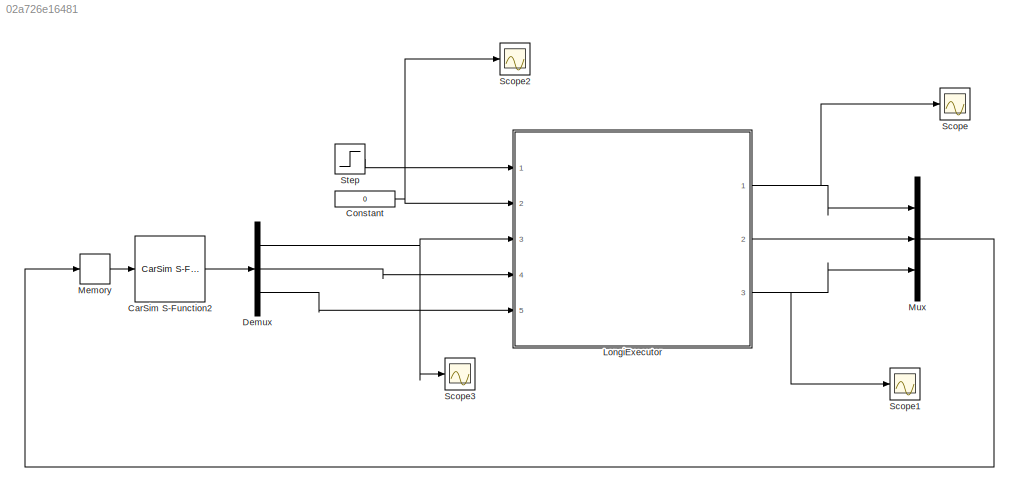
MODEL slx_02a726e16481
KIND model
CONFIG AbsTol = auto
CONFIG FixedStep = 0.001
CONFIG MaxStep = auto
CONFIG MinStep = auto
CONFIG PreLoadFcn = MotorPara
CONFIG RelTol = 1e-3
CONFIG SampleTimeConstraint = Unconstrained
CONFIG Solver = FixedStepDiscrete
CONFIG SolverMode = Auto
CONFIG SolverName = FixedStepDiscrete
CONFIG StartTime = 0.0
CONFIG StopTime = 10.0
BLOCK [Reference] CarSim S-Function2  REF=Solver_SF/CarSim S-Function2
  AttributesFormatString = Vehicle Code: %<VehicleCode>
  Ports = [1, 1]
  Priority = 1
  SourceBlock = Solver_SF/CarSim S-Function2
  SourceType = Vehicle math model library
BLOCK [Constant] Constant
  Value = 0
BLOCK [Demux] Demux
  DisplayOption = bar
  Outputs = 3
  Ports = [1, 3]
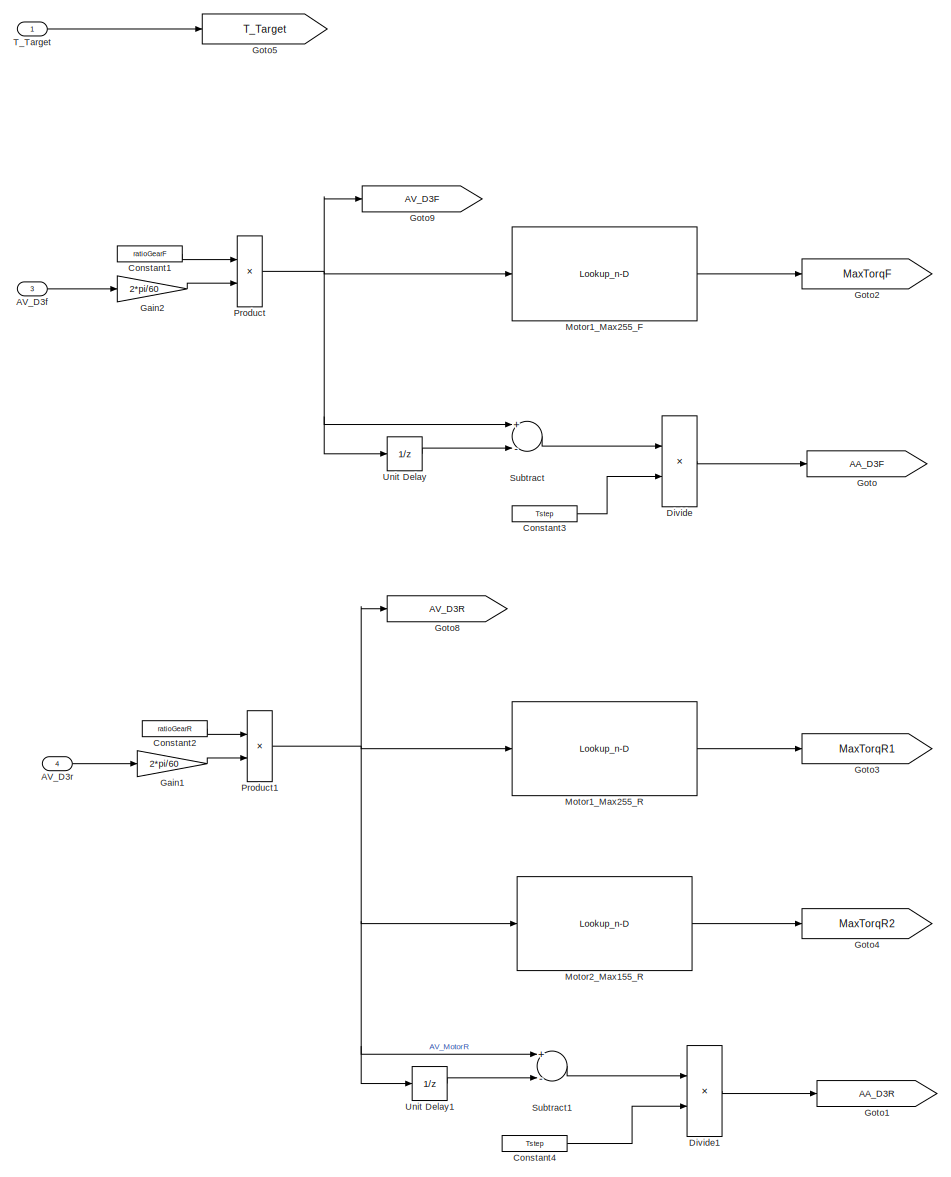
[diagram: LongiExecutor - part 1/5, top left region]
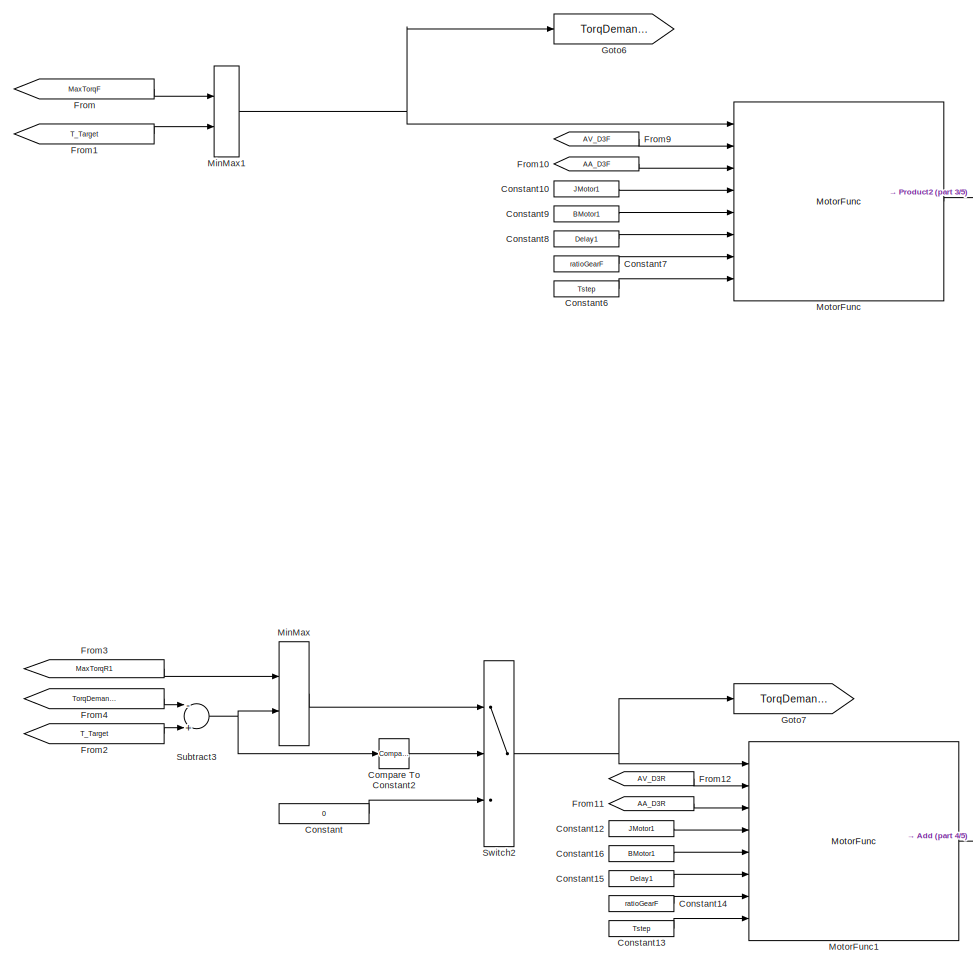
[diagram: LongiExecutor - part 2/5, central region]
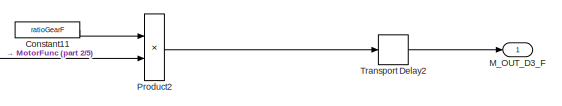
[diagram: LongiExecutor - part 3/5, middle right region]
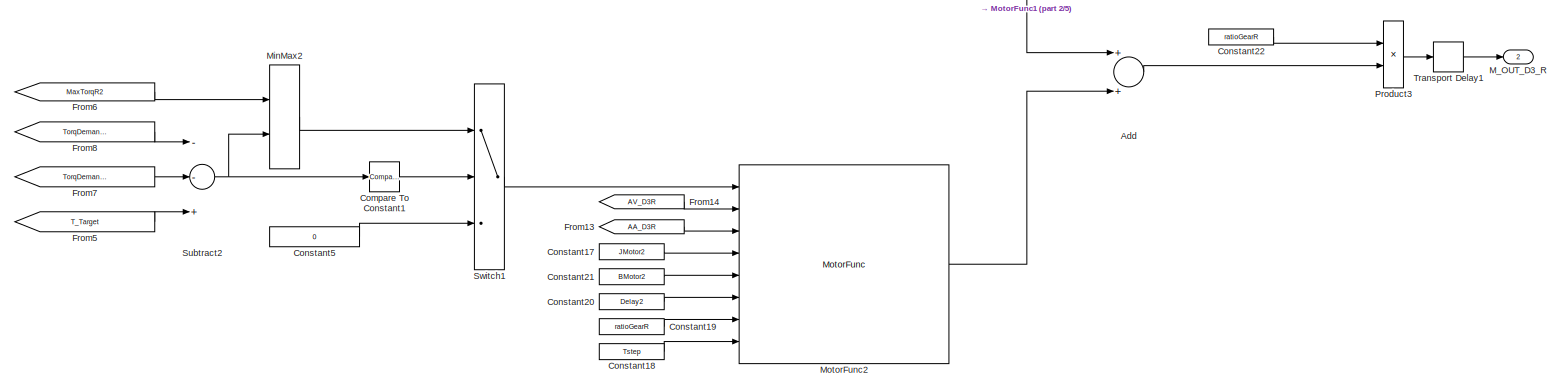
[diagram: LongiExecutor - part 4/5, full width, bottom band]
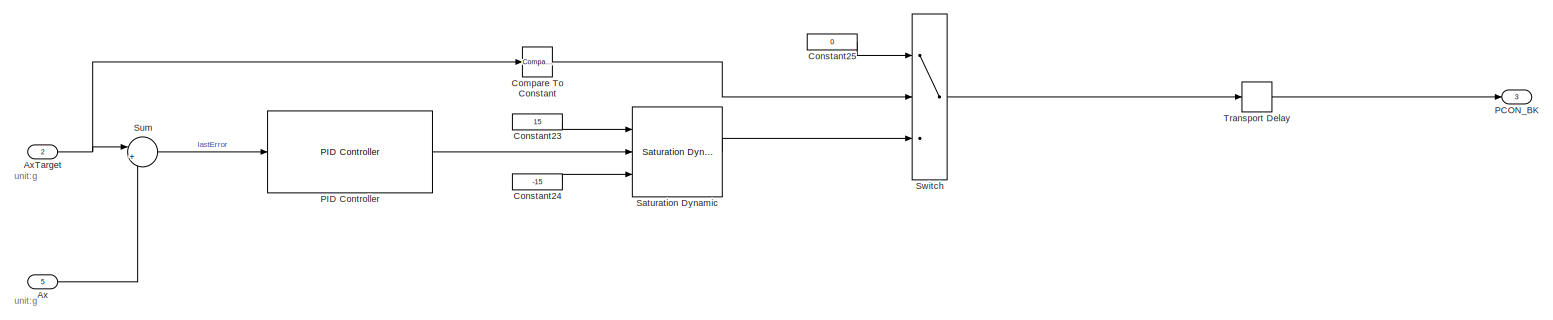
[diagram: LongiExecutor - part 5/5, full width, bottom band]
BLOCK [SubSystem] LongiExecutor
  Ports = [5, 3]
  RequestExecContextInheritance = off
  Variant = off
BLOCK [Inport] LongiExecutor/AV_D3f
  IconDisplay = Port number
  Port = 3
BLOCK [Inport] LongiExecutor/AV_D3r
  IconDisplay = Port number
  Port = 4
BLOCK [Sum] LongiExecutor/Add
  InputSameDT = off
  OutDataTypeStr = Inherit: Inherit via internal rule
  Ports = [2, 1]
  SaturateOnIntegerOverflow = off
BLOCK [Inport] LongiExecutor/Ax
  IconDisplay = Port number
  Port = 5
BLOCK [Inport] LongiExecutor/AxTarget
  IconDisplay = Port number
  Port = 2
BLOCK [Reference] LongiExecutor/Compare To Constant  REF=simulink/Logic and Bit
Operations/Compare
To Constant
  Ports = [1, 1]
  SourceBlock = simulink/Logic and Bit\nOperations/Compare\nTo Constant
  SourceType = Compare To Constant
BLOCK [Reference] LongiExecutor/Compare To Constant1  REF=simulink/Logic and Bit
Operations/Compare
To Constant
  Ports = [1, 1]
  SourceBlock = simulink/Logic and Bit\nOperations/Compare\nTo Constant
  SourceType = Compare To Constant
BLOCK [Reference] LongiExecutor/Compare To Constant2  REF=simulink/Logic and Bit
Operations/Compare
To Constant
  Ports = [1, 1]
  SourceBlock = simulink/Logic and Bit\nOperations/Compare\nTo Constant
  SourceType = Compare To Constant
BLOCK [Constant] LongiExecutor/Constant
  Value = 0
BLOCK [Constant] LongiExecutor/Constant1
  Value = ratioGearF
BLOCK [Constant] LongiExecutor/Constant10
  Value = JMotor1
BLOCK [Constant] LongiExecutor/Constant11
  Value = ratioGearF
BLOCK [Constant] LongiExecutor/Constant12
  Value = JMotor1
BLOCK [Constant] LongiExecutor/Constant13
  Value = Tstep
BLOCK [Constant] LongiExecutor/Constant14
  Value = ratioGearF
BLOCK [Constant] LongiExecutor/Constant15
  Value = Delay1
BLOCK [Constant] LongiExecutor/Constant16
  Value = BMotor1
BLOCK [Constant] LongiExecutor/Constant17
  Value = JMotor2
BLOCK [Constant] LongiExecutor/Constant18
  Value = Tstep
BLOCK [Constant] LongiExecutor/Constant19
  Value = ratioGearR
BLOCK [Constant] LongiExecutor/Constant2
  Value = ratioGearR
BLOCK [Constant] LongiExecutor/Constant20
  Value = Delay2
BLOCK [Constant] LongiExecutor/Constant21
  Value = BMotor2
BLOCK [Constant] LongiExecutor/Constant22
  Value = ratioGearR
BLOCK [Constant] LongiExecutor/Constant23
  Value = 15
BLOCK [Constant] LongiExecutor/Constant24
  Value = -15
BLOCK [Constant] LongiExecutor/Constant25
  Value = 0
BLOCK [Constant] LongiExecutor/Constant3
  Value = Tstep
BLOCK [Constant] LongiExecutor/Constant4
  Value = Tstep
BLOCK [Constant] LongiExecutor/Constant5
  Value = 0
BLOCK [Constant] LongiExecutor/Constant6
  Value = Tstep
BLOCK [Constant] LongiExecutor/Constant7
  Value = ratioGearF
BLOCK [Constant] LongiExecutor/Constant8
  Value = Delay1
BLOCK [Constant] LongiExecutor/Constant9
  Value = BMotor1
BLOCK [Product] LongiExecutor/Divide
  InputSameDT = off
  Inputs = */
  OutDataTypeStr = Inherit: Inherit via internal rule
  Ports = [2, 1]
  RndMeth = Floor
  SaturateOnIntegerOverflow = off
BLOCK [Product] LongiExecutor/Divide1
  InputSameDT = off
  Inputs = */
  OutDataTypeStr = Inherit: Inherit via internal rule
  Ports = [2, 1]
  RndMeth = Floor
  SaturateOnIntegerOverflow = off
BLOCK [From] LongiExecutor/From
  GotoTag = MaxTorqF
BLOCK [From] LongiExecutor/From1
  GotoTag = T_Target
BLOCK [From] LongiExecutor/From10
  GotoTag = AA_D3F
BLOCK [From] LongiExecutor/From11
  GotoTag = AA_D3R
BLOCK [From] LongiExecutor/From12
  GotoTag = AV_D3R
BLOCK [From] LongiExecutor/From13
  GotoTag = AA_D3R
BLOCK [From] LongiExecutor/From14
  GotoTag = AV_D3R
BLOCK [From] LongiExecutor/From2
  GotoTag = T_Target
BLOCK [From] LongiExecutor/From3
  GotoTag = MaxTorqR1
BLOCK [From] LongiExecutor/From4
  GotoTag = TorqDemandF
BLOCK [From] LongiExecutor/From5
  GotoTag = T_Target
BLOCK [From] LongiExecutor/From6
  GotoTag = MaxTorqR2
BLOCK [From] LongiExecutor/From7
  GotoTag = TorqDemandF
BLOCK [From] LongiExecutor/From8
  GotoTag = TorqDemandR1
BLOCK [From] LongiExecutor/From9
  GotoTag = AV_D3F
BLOCK [Gain] LongiExecutor/Gain1
  Gain = 2*pi/60
  OutDataTypeStr = Inherit: Inherit via internal rule
  ParamDataTypeStr = Inherit: Inherit via internal rule
  SaturateOnIntegerOverflow = off
BLOCK [Gain] LongiExecutor/Gain2
  Gain = 2*pi/60
  OutDataTypeStr = Inherit: Inherit via internal rule
  ParamDataTypeStr = Inherit: Inherit via internal rule
  SaturateOnIntegerOverflow = off
BLOCK [Goto] LongiExecutor/Goto
  GotoTag = AA_D3F
BLOCK [Goto] LongiExecutor/Goto1
  GotoTag = AA_D3R
BLOCK [Goto] LongiExecutor/Goto2
  GotoTag = MaxTorqF
BLOCK [Goto] LongiExecutor/Goto3
  GotoTag = MaxTorqR1
BLOCK [Goto] LongiExecutor/Goto4
  GotoTag = MaxTorqR2
BLOCK [Goto] LongiExecutor/Goto5
  GotoTag = T_Target
BLOCK [Goto] LongiExecutor/Goto6
  GotoTag = TorqDemandF
BLOCK [Goto] LongiExecutor/Goto7
  GotoTag = TorqDemandR1
BLOCK [Goto] LongiExecutor/Goto8
  GotoTag = AV_D3R
BLOCK [Goto] LongiExecutor/Goto9
  GotoTag = AV_D3F
BLOCK [Outport] LongiExecutor/M_OUT_D3_F
  IconDisplay = Port number
BLOCK [Outport] LongiExecutor/M_OUT_D3_R
  IconDisplay = Port number
  Port = 2
BLOCK [MinMax] LongiExecutor/MinMax
  InputSameDT = off
  Inputs = 2
  Ports = [2, 1]
  SaturateOnIntegerOverflow = off
BLOCK [MinMax] LongiExecutor/MinMax1
  InputSameDT = off
  Inputs = 2
  Ports = [2, 1]
  SaturateOnIntegerOverflow = off
BLOCK [MinMax] LongiExecutor/MinMax2
  InputSameDT = off
  Inputs = 2
  Ports = [2, 1]
  SaturateOnIntegerOverflow = off
BLOCK [Lookup_n-D] LongiExecutor/Motor1_Max255_F
  BreakpointsForDimension1 = [-1047.2,-942.48,-837.76,-733.04,-628.32,-523.6,-418.88,-314.16,-209.44,-104.72,-52.36,-0.1,0,0.1,52.36,104.72,209.44,314.16,418.88,523.6	628.32,733.04,837.76,942.48,1047.2]  <repeated x3 — deduplicated; at blocks: Motor1_Max255_F, Motor1_Max255_R, Motor2_Max155_R>
  InternalRulePriority = Speed
  NumberOfTableDimensions = 1
  Ports = [1, 1]
  RndMeth = Simplest
  Table = [-67,-79,-92,-108,-130,-159,-204,-255,-255,-255,-255,-255,255,255,255,255,255,255,204,159,130,108,92,79,67]
BLOCK [Lookup_n-D] LongiExecutor/Motor1_Max255_R
  InternalRulePriority = Speed
  NumberOfTableDimensions = 1
  Ports = [1, 1]
  RndMeth = Simplest
  Table = [-67,-79,-92,-108,-130,-159,-204,-255,-255,-255,-255,-255,255,255,255,255,255,255,204,159,130,108,92,79,67]
BLOCK [Lookup_n-D] LongiExecutor/Motor2_Max155_R
  InternalRulePriority = Speed
  NumberOfTableDimensions = 1
  Ports = [1, 1]
  RndMeth = Simplest
  Table = [-46.6,-52.3,-58.93,-69,-82.5,-99.5,-124.5,-155,-155,-155	,-155,-155,155,155,155,155,155,155,124.5,99.5,82.5,69,58.93,52.3,46.6]
BLOCK [Reference] LongiExecutor/MotorFunc  REF=MyLib/MotorFunc
  Ports = [8, 1]
  SourceBlock = MyLib/MotorFunc
  SourceType = SubSystem
BLOCK [Reference] LongiExecutor/MotorFunc1  REF=MyLib/MotorFunc
  Ports = [8, 1]
  SourceBlock = MyLib/MotorFunc
  SourceType = SubSystem
BLOCK [Reference] LongiExecutor/MotorFunc2  REF=MyLib/MotorFunc
  Ports = [8, 1]
  SourceBlock = MyLib/MotorFunc
  SourceType = SubSystem
BLOCK [Outport] LongiExecutor/PCON_BK
  IconDisplay = Port number
  Port = 3
BLOCK [Reference] LongiExecutor/PID Controller  REF=simulink/Continuous/PID Controller
  Ports = [1, 1]
  SourceBlock = simulink/Continuous/PID Controller
  SourceType = PID 1dof
BLOCK [Product] LongiExecutor/Product
  InputSameDT = off
  OutDataTypeStr = Inherit: Inherit via internal rule
  Ports = [2, 1]
  RndMeth = Floor
  SaturateOnIntegerOverflow = off
BLOCK [Product] LongiExecutor/Product1
  InputSameDT = off
  OutDataTypeStr = Inherit: Inherit via internal rule
  Ports = [2, 1]
  RndMeth = Floor
  SaturateOnIntegerOverflow = off
BLOCK [Product] LongiExecutor/Product2
  InputSameDT = off
  OutDataTypeStr = Inherit: Inherit via internal rule
  Ports = [2, 1]
  RndMeth = Floor
  SaturateOnIntegerOverflow = off
BLOCK [Product] LongiExecutor/Product3
  InputSameDT = off
  OutDataTypeStr = Inherit: Inherit via internal rule
  Ports = [2, 1]
  RndMeth = Floor
  SaturateOnIntegerOverflow = off
BLOCK [Reference] LongiExecutor/Saturation Dynamic  REF=simulink/Discontinuities/Saturation
Dynamic
  Ports = [3, 1]
  SourceBlock = simulink/Discontinuities/Saturation\nDynamic
  SourceType = Saturation Dynamic
BLOCK [Sum] LongiExecutor/Subtract
  InputSameDT = off
  Inputs = +-
  OutDataTypeStr = Inherit: Inherit via internal rule
  Ports = [2, 1]
  SaturateOnIntegerOverflow = off
BLOCK [Sum] LongiExecutor/Subtract1
  InputSameDT = off
  Inputs = +-
  OutDataTypeStr = Inherit: Inherit via internal rule
  Ports = [2, 1]
  SaturateOnIntegerOverflow = off
BLOCK [Sum] LongiExecutor/Subtract2
  InputSameDT = off
  Inputs = --+
  OutDataTypeStr = Inherit: Inherit via internal rule
  Ports = [3, 1]
  SaturateOnIntegerOverflow = off
BLOCK [Sum] LongiExecutor/Subtract3
  InputSameDT = off
  Inputs = -+
  OutDataTypeStr = Inherit: Inherit via internal rule
  Ports = [2, 1]
  SaturateOnIntegerOverflow = off
BLOCK [Sum] LongiExecutor/Sum
  IconShape = round
  InputSameDT = off
  Inputs = |+-
  OutDataTypeStr = Inherit: Inherit via internal rule
  Ports = [2, 1]
  SaturateOnIntegerOverflow = off
BLOCK [Switch] LongiExecutor/Switch
  Criteria = u2 ~= 0
  InputSameDT = off
  SaturateOnIntegerOverflow = off
BLOCK [Switch] LongiExecutor/Switch1
  Criteria = u2 ~= 0
  InputSameDT = off
  SaturateOnIntegerOverflow = off
BLOCK [Switch] LongiExecutor/Switch2
  Criteria = u2 ~= 0
  InputSameDT = off
  SaturateOnIntegerOverflow = off
BLOCK [Inport] LongiExecutor/T_Target
  IconDisplay = Port number
BLOCK [TransportDelay] LongiExecutor/Transport Delay
  DelayTime = BrkDelayTime
  Ports = [1, 1]
BLOCK [TransportDelay] LongiExecutor/Transport Delay1
  DelayTime = TorqDelayTime
  Ports = [1, 1]
BLOCK [TransportDelay] LongiExecutor/Transport Delay2
  DelayTime = TorqDelayTime
  Ports = [1, 1]
BLOCK [UnitDelay] LongiExecutor/Unit Delay
  InputProcessing = Elements as channels (sample based)
  SampleTime = -1
BLOCK [UnitDelay] LongiExecutor/Unit Delay1
  InputProcessing = Elements as channels (sample based)
  SampleTime = -1
BLOCK [Memory] Memory
BLOCK [Mux] Mux
  DisplayOption = bar
  Inputs = 3
  Ports = [3, 1]
BLOCK [Scope] Scope
  Ports = [1]
  ScopeSpecificationString = Simulink.scopes.TimeScopeBlockCfg('CurrentConfiguration', extmgr.ConfigurationSet(extmgr.Configuration('Core','General UI',true),extmgr.Configuration('Core','Source UI',true),extmgr.Configuration('Sources','WiredSimulink',true),extmgr.Configuration('Visuals','Time Domain',true,'SerializedDisplays',{struct('MinYLimReal','-286.98051','MaxYLimReal','32.67439','YLabelReal','','MinYLimMag',' 0.00000','...<+1376ch>
BLOCK [Scope] Scope1
  Ports = [1]
  ScopeSpecificationString = Simulink.scopes.TimeScopeBlockCfg('CurrentConfiguration', extmgr.ConfigurationSet(extmgr.Configuration('Core','General UI',true),extmgr.Configuration('Core','Source UI',true),extmgr.Configuration('Sources','WiredSimulink',true,'DataLoggingVariableName','ScopeData1'),extmgr.Configuration('Visuals','Time Domain',true,'SerializedDisplays',{struct('MinYLimReal','-16.93761','MaxYLimReal','2.4385','YLab...<+1430ch>
BLOCK [Scope] Scope2
  Ports = [1]
  ScopeSpecificationString = Simulink.scopes.TimeScopeBlockCfg('CurrentConfiguration', extmgr.ConfigurationSet(extmgr.Configuration('Core','General UI',true),extmgr.Configuration('Core','Source UI',true),extmgr.Configuration('Sources','WiredSimulink',true,'DataLoggingVariableName','ScopeData2'),extmgr.Configuration('Visuals','Time Domain',true,'SerializedDisplays',{struct('MinYLimReal','-0.45','MaxYLimReal','0.05','YLabelReal...<+1374ch>
BLOCK [Scope] Scope3
  Ports = [1]
  ScopeSpecificationString = Simulink.scopes.TimeScopeBlockCfg('CurrentConfiguration', extmgr.ConfigurationSet(extmgr.Configuration('Core','General UI',true),extmgr.Configuration('Core','Source UI',true),extmgr.Configuration('Sources','WiredSimulink',true,'DataLoggingVariableName','ScopeData5'),extmgr.Configuration('Visuals','Time Domain',true,'SerializedDisplays',{struct('MinYLimReal','-414.71059','MaxYLimReal','3671.11294',...<+1411ch>
BLOCK [Step] Step
  After = 150
  SampleTime = 0
ANNOTATION LongiExecutor: unit:g
LINE CarSim S-Function2:1 -> Demux:1
NET Constant:1 -> LongiExecutor:2, Scope2:1
NET Demux:1 -> LongiExecutor:3, Scope3:1
LINE Demux:2 -> LongiExecutor:4
LINE Demux:3 -> LongiExecutor:5
LINE LongiExecutor/AV_D3f:1 -> LongiExecutor/Gain2:1
LINE LongiExecutor/AV_D3r:1 -> LongiExecutor/Gain1:1
LINE LongiExecutor/Add:1 -> LongiExecutor/Product3:2
LINE LongiExecutor/Ax:1 -> LongiExecutor/Sum:2
NET LongiExecutor/AxTarget:1 -> LongiExecutor/Compare To Constant:1, LongiExecutor/Sum:1
LINE LongiExecutor/Compare To Constant1:1 -> LongiExecutor/Switch1:2
LINE LongiExecutor/Compare To Constant2:1 -> LongiExecutor/Switch2:2
LINE LongiExecutor/Compare To Constant:1 -> LongiExecutor/Switch:2
LINE LongiExecutor/Constant10:1 -> LongiExecutor/MotorFunc:4
LINE LongiExecutor/Constant11:1 -> LongiExecutor/Product2:1
LINE LongiExecutor/Constant12:1 -> LongiExecutor/MotorFunc1:4
LINE LongiExecutor/Constant13:1 -> LongiExecutor/MotorFunc1:8
LINE LongiExecutor/Constant14:1 -> LongiExecutor/MotorFunc1:7
LINE LongiExecutor/Constant15:1 -> LongiExecutor/MotorFunc1:6
LINE LongiExecutor/Constant16:1 -> LongiExecutor/MotorFunc1:5
LINE LongiExecutor/Constant17:1 -> LongiExecutor/MotorFunc2:4
LINE LongiExecutor/Constant18:1 -> LongiExecutor/MotorFunc2:8
LINE LongiExecutor/Constant19:1 -> LongiExecutor/MotorFunc2:7
LINE LongiExecutor/Constant1:1 -> LongiExecutor/Product:1
LINE LongiExecutor/Constant20:1 -> LongiExecutor/MotorFunc2:6
LINE LongiExecutor/Constant21:1 -> LongiExecutor/MotorFunc2:5
LINE LongiExecutor/Constant22:1 -> LongiExecutor/Product3:1
LINE LongiExecutor/Constant23:1 -> LongiExecutor/Saturation Dynamic:1
LINE LongiExecutor/Constant24:1 -> LongiExecutor/Saturation Dynamic:3
LINE LongiExecutor/Constant25:1 -> LongiExecutor/Switch:1
LINE LongiExecutor/Constant2:1 -> LongiExecutor/Product1:1
LINE LongiExecutor/Constant3:1 -> LongiExecutor/Divide:2
LINE LongiExecutor/Constant4:1 -> LongiExecutor/Divide1:2
LINE LongiExecutor/Constant5:1 -> LongiExecutor/Switch1:3
LINE LongiExecutor/Constant6:1 -> LongiExecutor/MotorFunc:8
LINE LongiExecutor/Constant7:1 -> LongiExecutor/MotorFunc:7
LINE LongiExecutor/Constant8:1 -> LongiExecutor/MotorFunc:6
LINE LongiExecutor/Constant9:1 -> LongiExecutor/MotorFunc:5
LINE LongiExecutor/Constant:1 -> LongiExecutor/Switch2:3
LINE LongiExecutor/Divide1:1 -> LongiExecutor/Goto1:1
LINE LongiExecutor/Divide:1 -> LongiExecutor/Goto:1
LINE LongiExecutor/From10:1 -> LongiExecutor/MotorFunc:3
LINE LongiExecutor/From11:1 -> LongiExecutor/MotorFunc1:3
LINE LongiExecutor/From12:1 -> LongiExecutor/MotorFunc1:2
LINE LongiExecutor/From13:1 -> LongiExecutor/MotorFunc2:3
LINE LongiExecutor/From14:1 -> LongiExecutor/MotorFunc2:2
LINE LongiExecutor/From1:1 -> LongiExecutor/MinMax1:2
LINE LongiExecutor/From2:1 -> LongiExecutor/Subtract3:2
LINE LongiExecutor/From3:1 -> LongiExecutor/MinMax:1
LINE LongiExecutor/From4:1 -> LongiExecutor/Subtract3:1
LINE LongiExecutor/From5:1 -> LongiExecutor/Subtract2:3
LINE LongiExecutor/From6:1 -> LongiExecutor/MinMax2:1
LINE LongiExecutor/From7:1 -> LongiExecutor/Subtract2:2
LINE LongiExecutor/From8:1 -> LongiExecutor/Subtract2:1
LINE LongiExecutor/From9:1 -> LongiExecutor/MotorFunc:2
LINE LongiExecutor/From:1 -> LongiExecutor/MinMax1:1
LINE LongiExecutor/Gain1:1 -> LongiExecutor/Product1:2
LINE LongiExecutor/Gain2:1 -> LongiExecutor/Product:2
NET LongiExecutor/MinMax1:1 -> LongiExecutor/Goto6:1, LongiExecutor/MotorFunc:1
LINE LongiExecutor/MinMax2:1 -> LongiExecutor/Switch1:1
LINE LongiExecutor/MinMax:1 -> LongiExecutor/Switch2:1
LINE LongiExecutor/Motor1_Max255_F:1 -> LongiExecutor/Goto2:1
LINE LongiExecutor/Motor1_Max255_R:1 -> LongiExecutor/Goto3:1
LINE LongiExecutor/Motor2_Max155_R:1 -> LongiExecutor/Goto4:1
LINE LongiExecutor/MotorFunc1:1 -> LongiExecutor/Add:1
LINE LongiExecutor/MotorFunc2:1 -> LongiExecutor/Add:2
LINE LongiExecutor/MotorFunc:1 -> LongiExecutor/Product2:2
LINE LongiExecutor/PID Controller:1 -> LongiExecutor/Saturation Dynamic:2
NET LongiExecutor/Product1:1 -> LongiExecutor/Goto8:1, LongiExecutor/Motor1_Max255_R:1, LongiExecutor/Motor2_Max155_R:1, LongiExecutor/Subtract1:1, LongiExecutor/Unit Delay1:1
LINE LongiExecutor/Product2:1 -> LongiExecutor/Transport Delay2:1
LINE LongiExecutor/Product3:1 -> LongiExecutor/Transport Delay1:1
NET LongiExecutor/Product:1 -> LongiExecutor/Goto9:1, LongiExecutor/Motor1_Max255_F:1, LongiExecutor/Subtract:1, LongiExecutor/Unit Delay:1
LINE LongiExecutor/Saturation Dynamic:1 -> LongiExecutor/Switch:3
LINE LongiExecutor/Subtract1:1 -> LongiExecutor/Divide1:1
NET LongiExecutor/Subtract2:1 -> LongiExecutor/Compare To Constant1:1, LongiExecutor/MinMax2:2
NET LongiExecutor/Subtract3:1 -> LongiExecutor/Compare To Constant2:1, LongiExecutor/MinMax:2
LINE LongiExecutor/Subtract:1 -> LongiExecutor/Divide:1
LINE LongiExecutor/Sum:1 -> LongiExecutor/PID Controller:1
LINE LongiExecutor/Switch1:1 -> LongiExecutor/MotorFunc2:1
NET LongiExecutor/Switch2:1 -> LongiExecutor/Goto7:1, LongiExecutor/MotorFunc1:1
LINE LongiExecutor/Switch:1 -> LongiExecutor/Transport Delay:1
LINE LongiExecutor/T_Target:1 -> LongiExecutor/Goto5:1
LINE LongiExecutor/Transport Delay1:1 -> LongiExecutor/M_OUT_D3_R:1
LINE LongiExecutor/Transport Delay2:1 -> LongiExecutor/M_OUT_D3_F:1
LINE LongiExecutor/Transport Delay:1 -> LongiExecutor/PCON_BK:1
LINE LongiExecutor/Unit Delay1:1 -> LongiExecutor/Subtract1:2
LINE LongiExecutor/Unit Delay:1 -> LongiExecutor/Subtract:2
NET LongiExecutor:1 -> Mux:1, Scope:1
LINE LongiExecutor:2 -> Mux:2
NET LongiExecutor:3 -> Mux:3, Scope1:1
LINE Memory:1 -> CarSim S-Function2:1
LINE Mux:1 -> Memory:1
LINE Step:1 -> LongiExecutor:1
note: NET lines group one-source signal fan-out (src -> all destinations, sorted); 1:1 wires keep LINE
